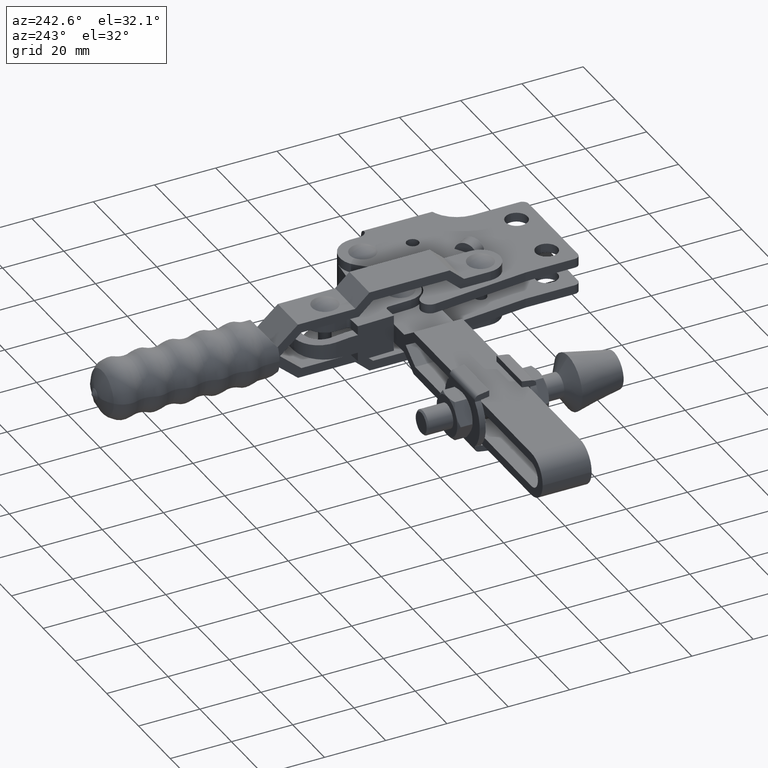
[diagram: clean part render]
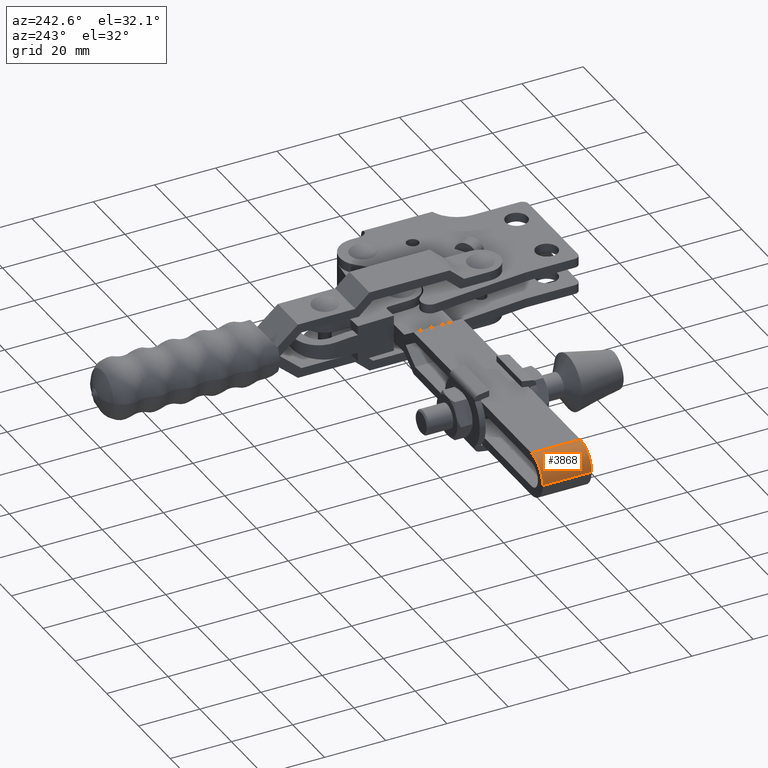
[diagram: same view with one face highlighted and labeled with its STEP entity id]
A machine part, auxiliary view. The second image highlights one B-rep face of the part: STEP entity #3868.
In plain terms, the highlighted cylindrical surface (edge-blend (fillet) strip) has radius 7.15 mm, axis along (0, 1, 0).
Its self-contained STEP definition (entity closure, byte-faithful):
#1736 = CARTESIAN_POINT ( 'NONE',  ( -133.8500000000000200, 31.79999999999999400, 7.150000000000227700 ) ) ;
#2012 = CARTESIAN_POINT ( 'NONE',  ( -133.8500000000000200, 29.30000000000023200, 4.191504427958993900E-015 ) ) ;
#3341 = EDGE_CURVE ( 'NONE', #9328, #11396, #8116, .T. ) ;
#3854 = DIRECTION ( 'NONE',  ( 2.264898338322218800E-015, 1.000000000000000000, 3.150134990220453800E-018 ) ) ;
#3868 = ADVANCED_FACE ( 'NONE', ( #10554 ), #5143, .T. ) ;
#4099 = CARTESIAN_POINT ( 'NONE',  ( -133.8500000000000200, 29.30000000000023200, 7.150000000000035900 ) ) ;
#4122 = DIRECTION ( 'NONE',  ( 4.081963296954256900E-015, 1.000000000000000000, 3.150134990220466500E-018 ) ) ;
#4141 = AXIS2_PLACEMENT_3D ( 'NONE', #9896, #4122, #10842 ) ;
#4208 = VERTEX_POINT ( 'NONE', #1736 ) ;
#4397 = DIRECTION ( 'NONE',  ( 1.227425735034547700E-016, -1.000000000000000000, -3.150134990220436800E-018 ) ) ;
#5143 = CYLINDRICAL_SURFACE ( 'NONE', #5579, 7.150000000000044800 ) ;
#5246 = CARTESIAN_POINT ( 'NONE',  ( -141.0000000000000600, 31.79999999999999400, -6.488032652453734600E-015 ) ) ;
#5260 = LINE ( 'NONE', #4099, #10086 ) ;
#5579 = AXIS2_PLACEMENT_3D ( 'NONE', #2012, #11612, #8744 ) ;
#5706 = AXIS2_PLACEMENT_3D ( 'NONE', #10172, #4397, #11112 ) ;
#6266 = VERTEX_POINT ( 'NONE', #5246 ) ;
#6641 = EDGE_CURVE ( 'NONE', #6266, #9328, #10781, .T. ) ;
#6893 = ORIENTED_EDGE ( 'NONE', *, *, #3341, .F. ) ;
#7696 = CARTESIAN_POINT ( 'NONE',  ( -141.0000000000000600, 29.30000000000024900, -6.521109069851027700E-015 ) ) ;
#7730 = ORIENTED_EDGE ( 'NONE', *, *, #6641, .F. ) ;
#8075 = EDGE_LOOP ( 'NONE', ( #7730, #10667, #8688, #6893 ) ) ;
#8116 = CIRCLE ( 'NONE', #4141, 7.150000000000044800 ) ;
#8343 = CIRCLE ( 'NONE', #5706, 7.150000000000044800 ) ;
#8688 = ORIENTED_EDGE ( 'NONE', *, *, #11956, .T. ) ;
#8744 = DIRECTION ( 'NONE',  ( -1.000000000000000000, 2.426186679687826700E-015, -1.498267622071322400E-015 ) ) ;
#9090 = EDGE_CURVE ( 'NONE', #4208, #6266, #8343, .T. ) ;
#9328 = VERTEX_POINT ( 'NONE', #12373 ) ;
#9872 = DIRECTION ( 'NONE',  ( 2.264898338322218800E-015, 1.000000000000000000, 3.150134990220453800E-018 ) ) ;
#9896 = CARTESIAN_POINT ( 'NONE',  ( -133.8499999999999700, 47.80000000000045200, 4.249781925278084400E-015 ) ) ;
#10086 = VECTOR ( 'NONE', #9872, 1000.000000000000000 ) ;
#10172 = CARTESIAN_POINT ( 'NONE',  ( -133.8500000000000200, 31.79999999999999400, 4.199379765434539400E-015 ) ) ;
#10484 = VECTOR ( 'NONE', #3854, 1000.000000000000000 ) ;
#10554 = FACE_OUTER_BOUND ( 'NONE', #8075, .T. ) ;
#10667 = ORIENTED_EDGE ( 'NONE', *, *, #9090, .F. ) ;
#10781 = LINE ( 'NONE', #7696, #10484 ) ;
#10842 = DIRECTION ( 'NONE',  ( -1.000000000000000000, 3.881898687500523100E-015, -1.498267622071322400E-015 ) ) ;
#11112 = DIRECTION ( 'NONE',  ( 1.000000000000000000, 0.0000000000000000000, 1.498267622071322400E-015 ) ) ;
#11396 = VERTEX_POINT ( 'NONE', #12412 ) ;
#11612 = DIRECTION ( 'NONE',  ( 2.264898338322218800E-015, 1.000000000000000000, 3.150134990220454100E-018 ) ) ;
#11956 = EDGE_CURVE ( 'NONE', #4208, #11396, #5260, .T. ) ;
#12373 = CARTESIAN_POINT ( 'NONE',  ( -141.0000000000000000, 47.80000000000048000, -6.488032652453692800E-015 ) ) ;
#12412 = CARTESIAN_POINT ( 'NONE',  ( -133.8499999999999700, 47.80000000000045200, 7.150000000000227700 ) ) ;